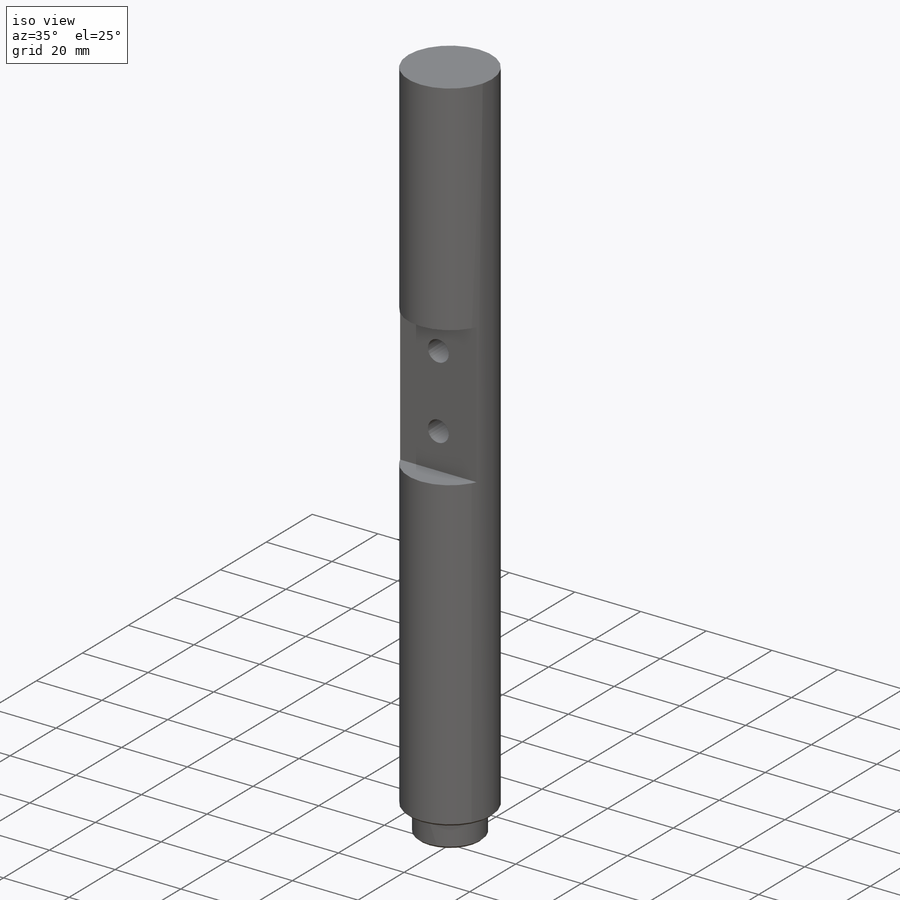
[diagram: iso view]
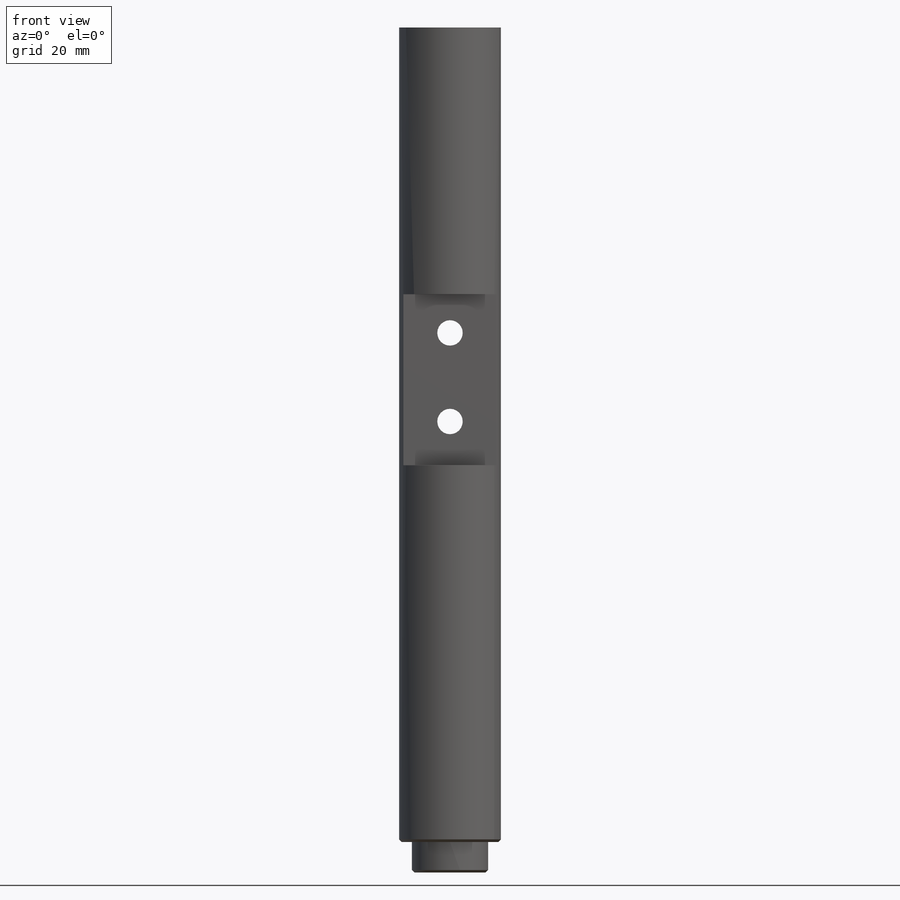
[diagram: front view]
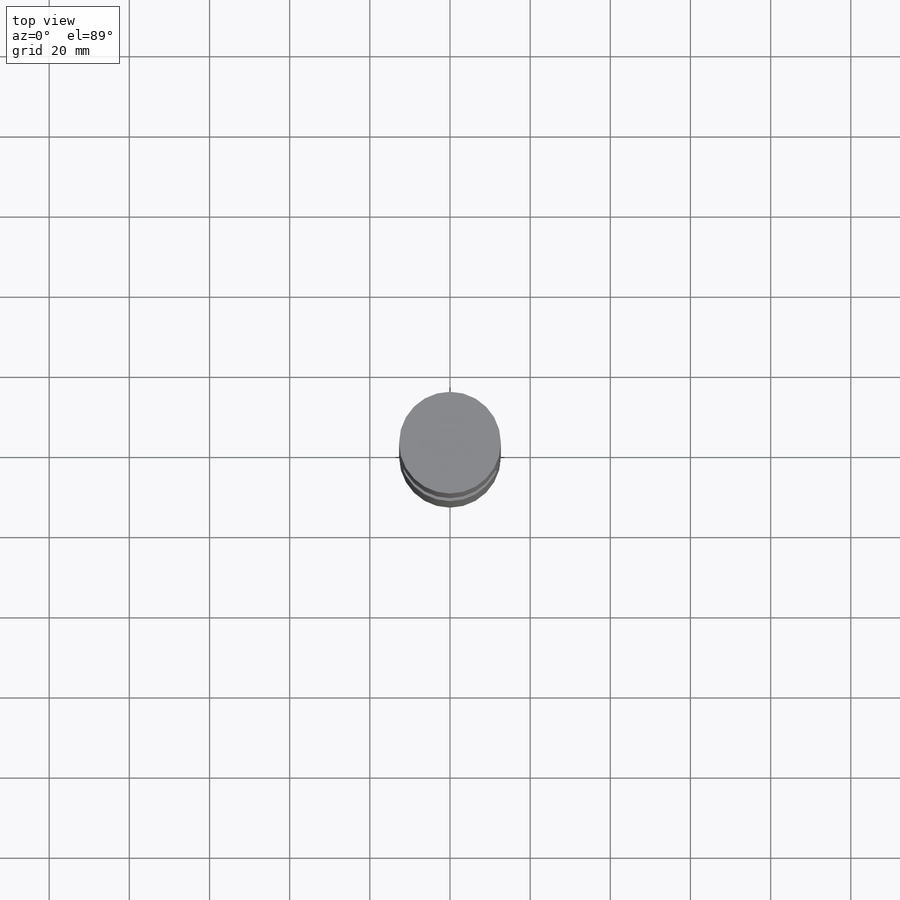
[diagram: top view]
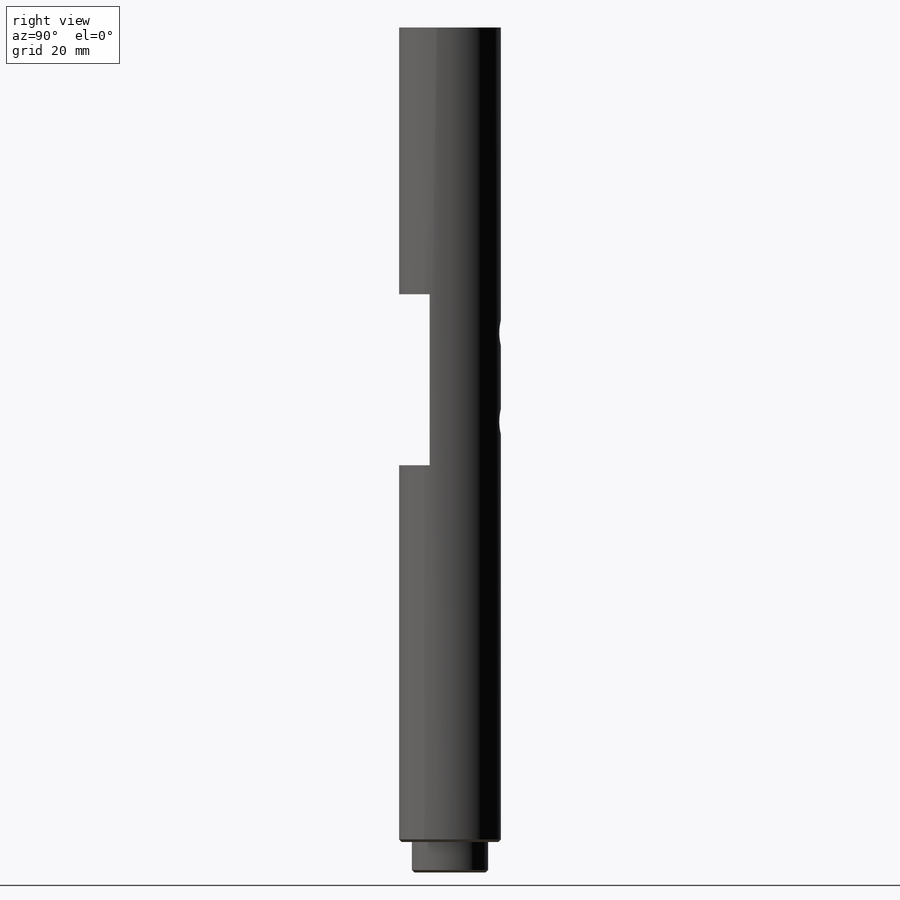
[diagram: right view]
SOLIDWORKS PART (.sldprt)
format: sldprt  version: not decoded by parser v0  size: 154,112 bytes
history: native  units: mm
features: sketch x4, extrude x2, cut_extrude x2, material x1, chamfer x1 (+12 scaffold rows collapsed)
feature tree (22):
  scaffold x12  (default folders/planes/origin — collapsed)
  material  "Material <not specified>"
  sketch  "Sketch1"  dims[D1=25.4mm]
  extrude  "Boss-Extrude1"  Depth=203.2mm
  sketch  "Sketch2"  dims[D1=19.05mm]
  extrude  "Boss-Extrude2"  Depth=7.62mm
  chamfer  "Chamfer1"  Distance=0.635mm Angle=45deg
  sketch  "Sketch4"  dims[D1=42.672mm D2=101.6mm D3=7.62mm]
  cut_extrude  "Cut-Extrude1"  Depth=25.4mm
  sketch  "Sketch5"  dims[c1.D1=6.35mm c1.D2=10.922mm c1.D3=33.02mm c2.D2=10.922mm c2.D3=33.02mm]
  cut_extrude  "Cut-Extrude2"  Depth=25.4mm
decode coverage: 9 of 9 modeling features carry decoded parameters
note: suppression state not decoded; provenance and decode notes live in map.json
